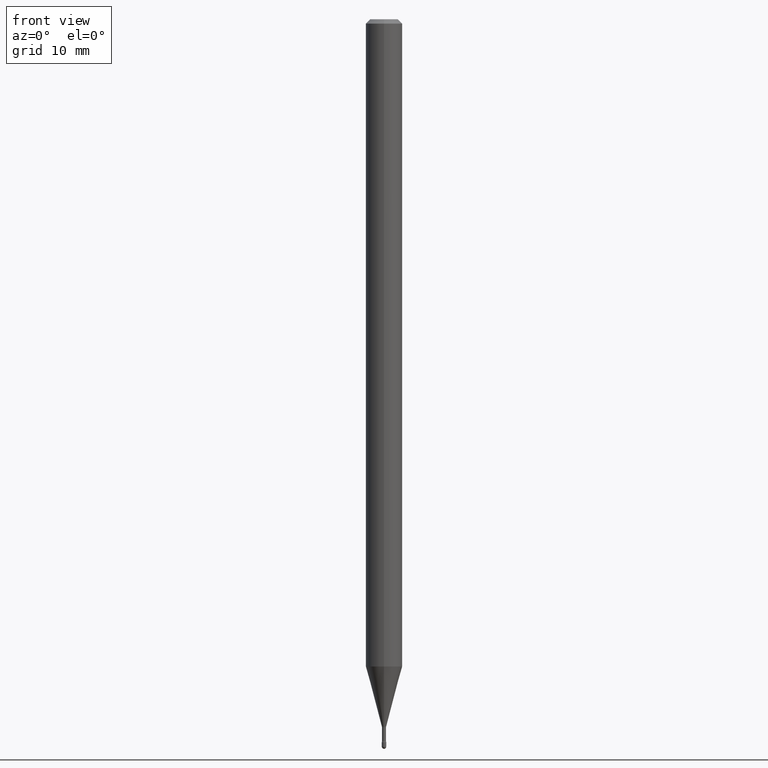
[diagram: clean part render]
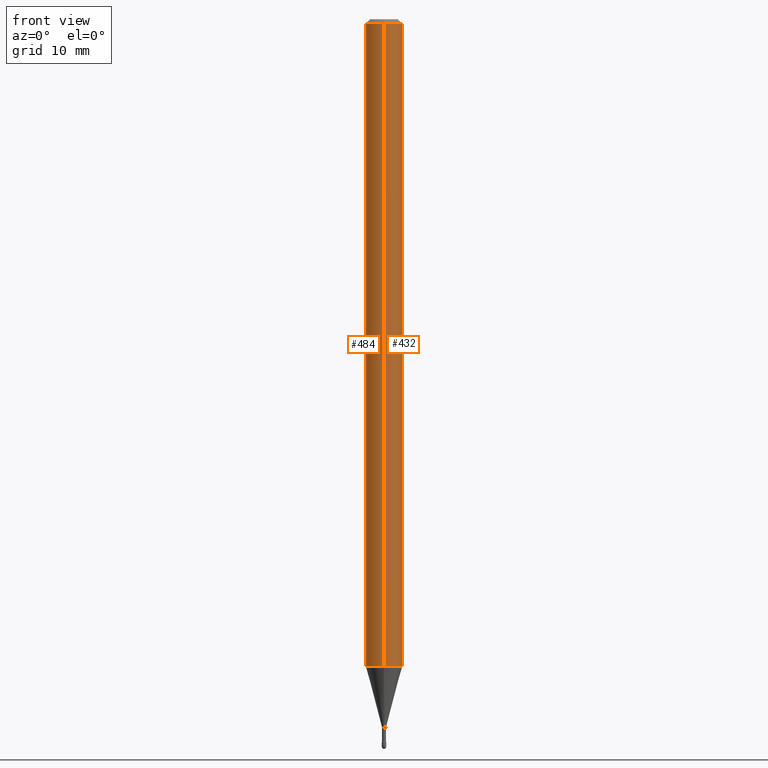
[diagram: same view with one multi-face feature highlighted, each face labeled with its STEP entity id]
A machine part, front view. The highlighted faces form ONE feature: a constant-radius fillet chain: 2 tangent blend faces with common blend radius 1.5875 mm. The faces share edges in the B-rep.
Their STEP definitions:
[1] entity #432 (Cylinder):
#14 = CARTESIAN_POINT ( 'NONE',  ( -1.169113584055446105E-44, 1.669184350826100908E-30, 4.780733988912460139E-16 ) ) ;
#21 = VERTEX_POINT ( 'NONE', #461 ) ;
#27 = LINE ( 'NONE', #373, #534 ) ;
#33 = LINE ( 'NONE', #561, #446 ) ;
#45 = VERTEX_POINT ( 'NONE', #246 ) ;
#51 = FACE_OUTER_BOUND ( 'NONE', #136, .T. ) ;
#60 = AXIS2_PLACEMENT_3D ( 'NONE', #14, #302, #176 ) ;
#80 = EDGE_CURVE ( 'NONE', #147, #45, #346, .T. ) ;
#83 = CARTESIAN_POINT ( 'NONE',  ( -4.364351673553374845E-16, -0.06250000000000775768, -2.218057782720305848 ) ) ;
#87 = EDGE_CURVE ( 'NONE', #267, #21, #171, .T. ) ;
#105 = AXIS2_PLACEMENT_3D ( 'NONE', #276, #236, #409 ) ;
#120 = ORIENTED_EDGE ( 'NONE', *, *, #188, .T. ) ;
#136 = EDGE_LOOP ( 'NONE', ( #243, #120, #380, #160 ) ) ;
#147 = VERTEX_POINT ( 'NONE', #503 ) ;
#150 = DIRECTION ( 'NONE',  ( -2.445435438683695197E-29, 3.491529123004369972E-15, 1.000000000000000000 ) ) ;
#152 = DIRECTION ( 'NONE',  ( -2.445435438683695197E-29, 3.491529123004369972E-15, 1.000000000000000000 ) ) ;
#160 = ORIENTED_EDGE ( 'NONE', *, *, #244, .F. ) ;
#171 = CIRCLE ( 'NONE', #317, 0.06250000000000000000 ) ;
#176 = DIRECTION ( 'NONE',  ( -6.982962677686265922E-15, -1.000000000000000000, 3.491529123004369183E-15 ) ) ;
#186 = DIRECTION ( 'NONE',  ( -6.982962677686265922E-15, -1.000000000000000000, 4.370956789862821150E-15 ) ) ;
#188 = EDGE_CURVE ( 'NONE', #21, #45, #27, .T. ) ;
#236 = DIRECTION ( 'NONE',  ( -2.445435438683695197E-29, 3.491529123004369972E-15, 1.000000000000000000 ) ) ;
#243 = ORIENTED_EDGE ( 'NONE', *, *, #87, .T. ) ;
#244 = EDGE_CURVE ( 'NONE', #267, #147, #33, .T. ) ;
#246 = CARTESIAN_POINT ( 'NONE',  ( 4.440892098501171462E-16, 0.06249999999999995143, -0.01500000000000030129 ) ) ;
#267 = VERTEX_POINT ( 'NONE', #83 ) ;
#276 = CARTESIAN_POINT ( 'NONE',  ( 3.668153158025562537E-31, -5.237293684506583702E-17, -0.01500000000000008271 ) ) ;
#302 = DIRECTION ( 'NONE',  ( -2.445435438683695197E-29, 3.491529123004369972E-15, 1.000000000000000000 ) ) ;
#317 = AXIS2_PLACEMENT_3D ( 'NONE', #445, #150, #186 ) ;
#346 = CIRCLE ( 'NONE', #105, 0.06250000000000000000 ) ;
#373 = CARTESIAN_POINT ( 'NONE',  ( 4.440892098500625669E-16, 0.06250000000000000000, 2.598528287034729400E-16 ) ) ;
#380 = ORIENTED_EDGE ( 'NONE', *, *, #80, .F. ) ;
#409 = DIRECTION ( 'NONE',  ( -6.982962677686265922E-15, -1.000000000000000000, 3.483106191921935554E-15 ) ) ;
#432 = ADVANCED_FACE ( 'NONE', ( #51 ), #443, .T. ) ;
#443 = CYLINDRICAL_SURFACE ( 'NONE', #60, 0.06250000000000000000 ) ;
#445 = CARTESIAN_POINT ( 'NONE',  ( 5.424117106912415965E-29, -7.744413344874448194E-15, -2.218057782720306292 ) ) ;
#446 = VECTOR ( 'NONE', #557, 39.37007874015748143 ) ;
#461 = CARTESIAN_POINT ( 'NONE',  ( 4.440892098501166531E-16, 0.06249999999999225619, -2.218057782720306736 ) ) ;
#503 = CARTESIAN_POINT ( 'NONE',  ( -4.364351673553912750E-16, -0.06250000000000005551, -0.01499999999999986587 ) ) ;
#534 = VECTOR ( 'NONE', #152, 39.37007874015748143 ) ;
#557 = DIRECTION ( 'NONE',  ( -2.445435438683695197E-29, 3.491529123004369972E-15, 1.000000000000000000 ) ) ;
#561 = CARTESIAN_POINT ( 'NONE',  ( -4.364351673553916201E-16, -0.06250000000000000000, 6.962939690790190879E-16 ) ) ;
[2] entity #484 (Cylinder):
#21 = VERTEX_POINT ( 'NONE', #461 ) ;
#27 = LINE ( 'NONE', #373, #534 ) ;
#33 = LINE ( 'NONE', #561, #446 ) ;
#45 = VERTEX_POINT ( 'NONE', #246 ) ;
#56 = DIRECTION ( 'NONE',  ( -2.445435438683695197E-29, 3.491529123004369972E-15, 1.000000000000000000 ) ) ;
#70 = AXIS2_PLACEMENT_3D ( 'NONE', #348, #56, #220 ) ;
#81 = AXIS2_PLACEMENT_3D ( 'NONE', #404, #196, #314 ) ;
#83 = CARTESIAN_POINT ( 'NONE',  ( -4.364351673553374845E-16, -0.06250000000000775768, -2.218057782720305848 ) ) ;
#84 = EDGE_LOOP ( 'NONE', ( #106, #509, #286, #556 ) ) ;
#106 = ORIENTED_EDGE ( 'NONE', *, *, #188, .F. ) ;
#146 = CIRCLE ( 'NONE', #70, 0.06250000000000000000 ) ;
#147 = VERTEX_POINT ( 'NONE', #503 ) ;
#152 = DIRECTION ( 'NONE',  ( -2.445435438683695197E-29, 3.491529123004369972E-15, 1.000000000000000000 ) ) ;
#188 = EDGE_CURVE ( 'NONE', #21, #45, #27, .T. ) ;
#194 = CYLINDRICAL_SURFACE ( 'NONE', #480, 0.06250000000000000000 ) ;
#196 = DIRECTION ( 'NONE',  ( -2.445435438683695197E-29, 3.491529123004369972E-15, 1.000000000000000000 ) ) ;
#220 = DIRECTION ( 'NONE',  ( -6.982962677686265922E-15, -1.000000000000000000, 3.483106191921935554E-15 ) ) ;
#229 = DIRECTION ( 'NONE',  ( -2.445435438683695197E-29, 3.491529123004369972E-15, 1.000000000000000000 ) ) ;
#240 = CARTESIAN_POINT ( 'NONE',  ( -1.169113584055446105E-44, 1.669184350826100908E-30, 4.780733988912460139E-16 ) ) ;
#244 = EDGE_CURVE ( 'NONE', #267, #147, #33, .T. ) ;
#246 = CARTESIAN_POINT ( 'NONE',  ( 4.440892098501171462E-16, 0.06249999999999995143, -0.01500000000000030129 ) ) ;
#267 = VERTEX_POINT ( 'NONE', #83 ) ;
#286 = ORIENTED_EDGE ( 'NONE', *, *, #244, .T. ) ;
#314 = DIRECTION ( 'NONE',  ( -6.982962677686265922E-15, -1.000000000000000000, 4.370956789862821150E-15 ) ) ;
#348 = CARTESIAN_POINT ( 'NONE',  ( 3.668153158025562537E-31, -5.237293684506583702E-17, -0.01500000000000008271 ) ) ;
#373 = CARTESIAN_POINT ( 'NONE',  ( 4.440892098500625669E-16, 0.06250000000000000000, 2.598528287034729400E-16 ) ) ;
#403 = CIRCLE ( 'NONE', #81, 0.06250000000000000000 ) ;
#404 = CARTESIAN_POINT ( 'NONE',  ( 5.424117106912415965E-29, -7.744413344874448194E-15, -2.218057782720306292 ) ) ;
#426 = EDGE_CURVE ( 'NONE', #45, #147, #146, .T. ) ;
#444 = DIRECTION ( 'NONE',  ( -6.982962677686265922E-15, -1.000000000000000000, 3.491529123004369183E-15 ) ) ;
#446 = VECTOR ( 'NONE', #557, 39.37007874015748143 ) ;
#461 = CARTESIAN_POINT ( 'NONE',  ( 4.440892098501166531E-16, 0.06249999999999225619, -2.218057782720306736 ) ) ;
#480 = AXIS2_PLACEMENT_3D ( 'NONE', #240, #229, #444 ) ;
#484 = ADVANCED_FACE ( 'NONE', ( #498 ), #194, .T. ) ;
#490 = EDGE_CURVE ( 'NONE', #21, #267, #403, .T. ) ;
#498 = FACE_OUTER_BOUND ( 'NONE', #84, .T. ) ;
#503 = CARTESIAN_POINT ( 'NONE',  ( -4.364351673553912750E-16, -0.06250000000000005551, -0.01499999999999986587 ) ) ;
#509 = ORIENTED_EDGE ( 'NONE', *, *, #490, .T. ) ;
#534 = VECTOR ( 'NONE', #152, 39.37007874015748143 ) ;
#556 = ORIENTED_EDGE ( 'NONE', *, *, #426, .F. ) ;
#557 = DIRECTION ( 'NONE',  ( -2.445435438683695197E-29, 3.491529123004369972E-15, 1.000000000000000000 ) ) ;
#561 = CARTESIAN_POINT ( 'NONE',  ( -4.364351673553916201E-16, -0.06250000000000000000, 6.962939690790190879E-16 ) ) ;